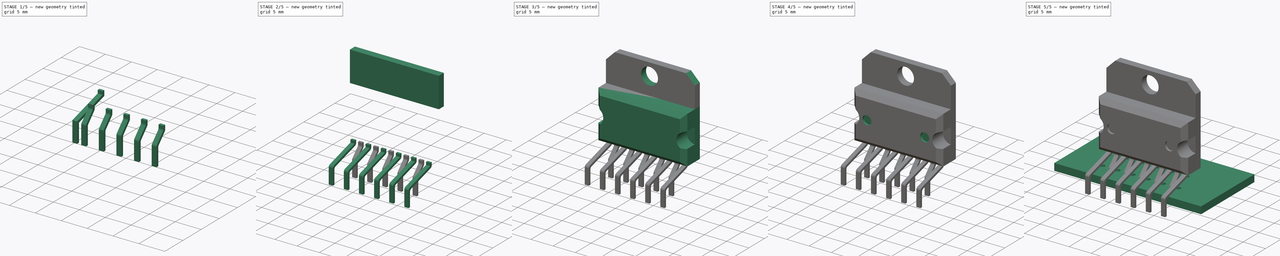
[diagram: build sequence overview — one tinted view per stage of 5, left to right]
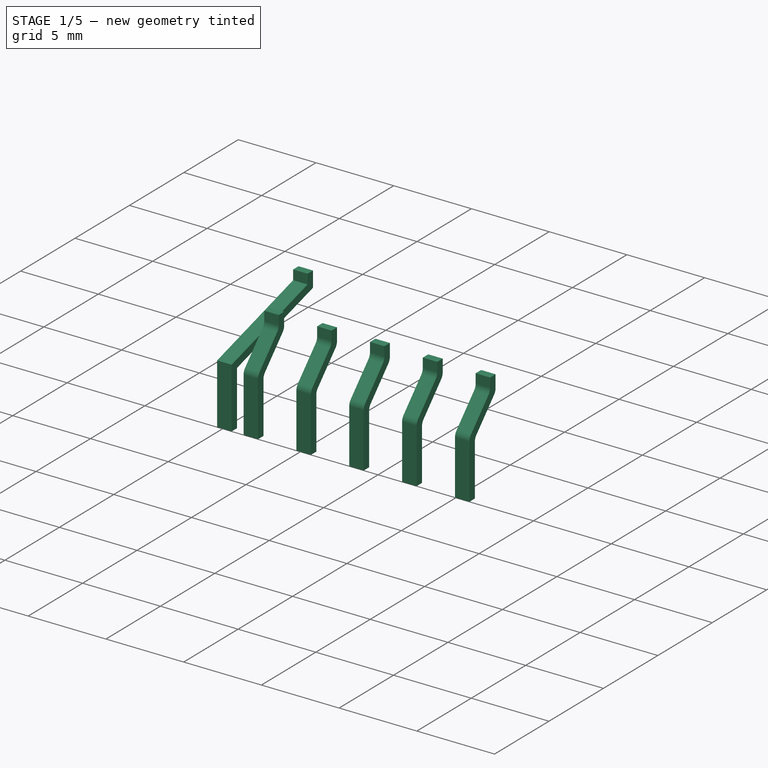
[diagram: stage 1 of 5 — iso view after this stage's code; geometry added in this stage tinted green]
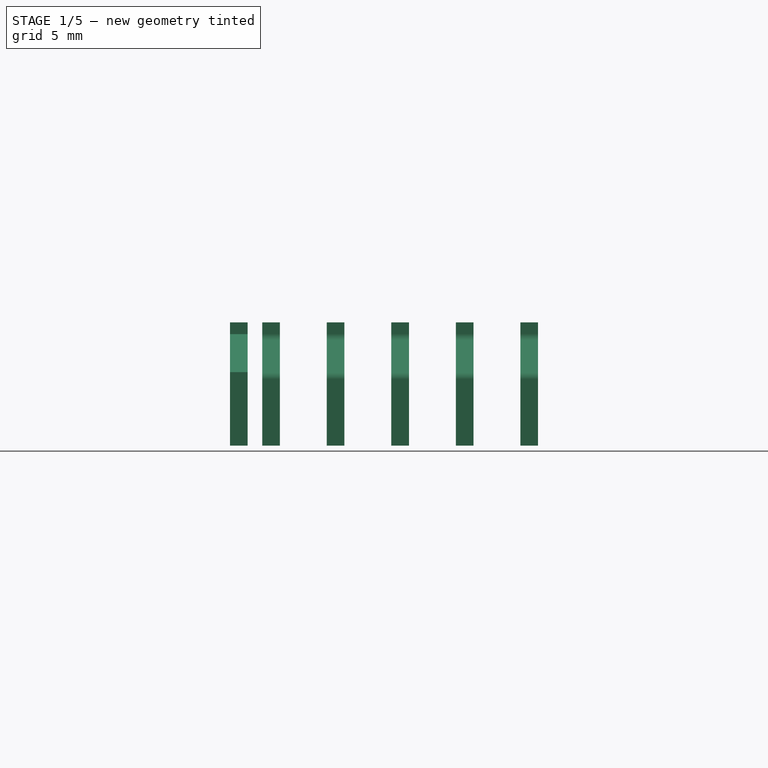
[diagram: stage 1 of 5 — front view after this stage's code; geometry added in this stage tinted green]
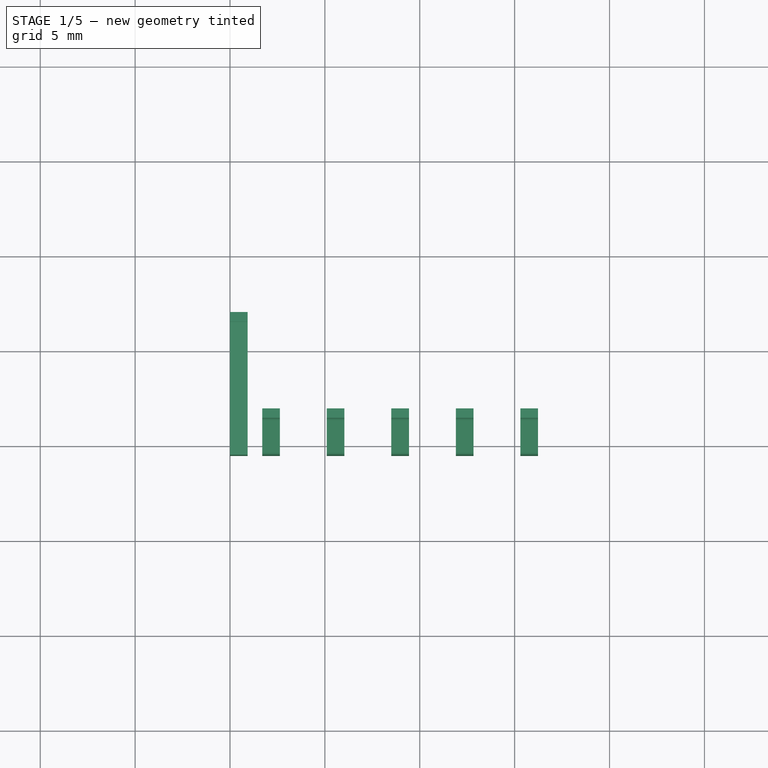
[diagram: stage 1 of 5 — top view after this stage's code; geometry added in this stage tinted green]
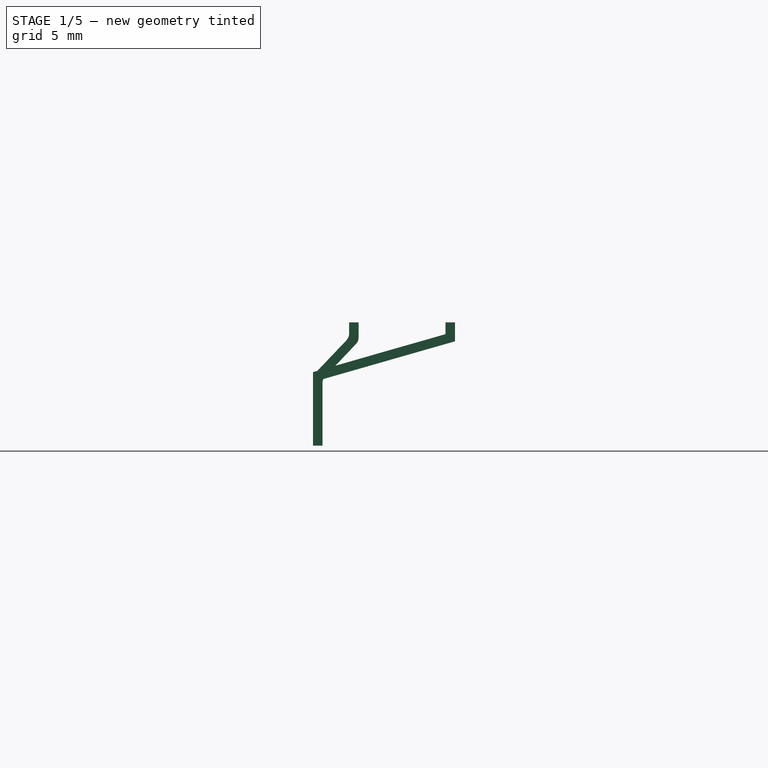
[diagram: stage 1 of 5 — right view after this stage's code; geometry added in this stage tinted green]
FCSTD DOCUMENT  (FreeCAD 0.17R10973 (Git))
Label: Multiwatt-11_Vertical_StaggeredType1
License: CreativeCommons Attribution-ShareAlike
LicenseURL: http://creativecommons.org/licenses/by-sa/4.0/
objects: Sketcher::SketchObject×7, Part::FeaturePython×7, PartDesign::Pad×4, PartDesign::Pocket×3, Part::Fillet×2, Part::MultiFuse×2, PartDesign::Chamfer×1, App::DocumentObjectGroup×1, Part::Feature×1
note: 34 computed .brp shape members not serialized (recipe doc carries the construction recipe); baked Part::Feature solids carry a one-line shape summary decoded from their .brp

FEATURE [Sketcher::SketchObject] Sketch  label="longpin"
  MapMode = 5
  Placement = pos=(0,0,0) rot=(0.57735,0.57735,0.57735;2.0944rad)
  sketch-geometry (9):
    g0: LineSegment StartX=0 StartY=-3.5 StartZ=0 EndX=0 EndY=0 EndZ=0
    g1: LineSegment StartX=0 StartY=0 StartZ=0 EndX=6.98 EndY=2 EndZ=0
    g2: LineSegment StartX=6.98 StartY=2 StartZ=0 EndX=6.98 EndY=3 EndZ=0
    g3: LineSegment StartX=6.98 StartY=3 StartZ=0 EndX=6.48 EndY=3 EndZ=0
    g4: LineSegment StartX=6.48 StartY=3 StartZ=0 EndX=6.48 EndY=2.37685 EndZ=0
    g5: LineSegment StartX=6.48 StartY=2.37685 StartZ=0 EndX=-0.5 EndY=0.376854 EndZ=0
    g6: LineSegment StartX=-0.5 StartY=0.376854 StartZ=0 EndX=-0.5 EndY=-3.5 EndZ=0
    g7: LineSegment StartX=-0.5 StartY=-3.5 StartZ=0 EndX=0 EndY=-3.5 EndZ=0
    g8: LineSegment StartX=1.75346 StartY=1.02255 StartZ=0 EndX=1.89119 EndY=0.541887 EndZ=0
  constraints (26):
    c: Vertical(g0)
    c: Coincident(g0,g1)
    c: Coincident(g1,g2)
    c: Vertical(g2)
    c: Coincident(g2,g3)
    c: Horizontal(g3)
    c: Coincident(g3,g4)
    c: Vertical(g4)
    c: Coincident(g4,g5)
    c: Coincident(g5,g6)
    c: Vertical(g6)
    c: Coincident(g6,g7)
    c: Coincident(g7,g0)
    c: Horizontal(g7)
    c: PointOnObject(g0,g-1)
    c: PointOnObject(g0,g-2)
    c: PointOnObject(g8,g5)
    c: PointOnObject(g8,g1)
    c: Perpendicular(g8,g5)
    c: Distance(g8) = 0.5
    c: Distance(g3) = 0.5
    c: DistanceY(g1,g1) = 2
    c: Parallel(g1,g5)
    c: DistanceX(g5,g5) = 6.98
    c: DistanceX(g7,g7) = 0.5
    c: DistanceY(g2,g2) = 1
FEATURE [Sketcher::SketchObject] Sketch001  label="shortpin"
  MapMode = 5
  Placement = pos=(0,0,0) rot=(0.57735,0.57735,0.57735;2.0944rad)
  sketch-geometry (9):
    g0: LineSegment StartX=0 StartY=-3.5 StartZ=0 EndX=0 EndY=0 EndZ=0
    g1: LineSegment StartX=0 StartY=0 StartZ=0 EndX=1.9 EndY=2 EndZ=0
    g2: LineSegment StartX=1.9 StartY=2 StartZ=0 EndX=1.9 EndY=3 EndZ=0
    g3: LineSegment StartX=1.9 StartY=3 StartZ=0 EndX=1.4 EndY=3 EndZ=0
    g4: LineSegment StartX=1.4 StartY=3 StartZ=0 EndX=1.4 EndY=2.19964 EndZ=0
    g5: LineSegment StartX=1.4 StartY=2.19964 StartZ=0 EndX=-0.5 EndY=0.199638 EndZ=0
    g6: LineSegment StartX=-0.5 StartY=0.199638 StartZ=0 EndX=-0.5 EndY=-3.5 EndZ=0
    g7: LineSegment StartX=-0.5 StartY=-3.5 StartZ=0 EndX=0 EndY=-3.5 EndZ=0
    g8: LineSegment StartX=0.841182 StartY=1.61141 StartZ=0 EndX=1.20368 EndY=1.26703 EndZ=0
  constraints (26):
    c: Vertical(g0)
    c: Coincident(g0,g1)
    c: Coincident(g1,g2)
    c: Vertical(g2)
    c: Coincident(g2,g3)
    c: Horizontal(g3)
    c: Coincident(g3,g4)
    c: Vertical(g4)
    c: Coincident(g4,g5)
    c: Coincident(g5,g6)
    c: Vertical(g6)
    c: Coincident(g6,g7)
    c: Coincident(g7,g0)
    c: Horizontal(g7)
    c: PointOnObject(g0,g-1)
    c: PointOnObject(g0,g-2)
    c: PointOnObject(g8,g5)
    c: PointOnObject(g8,g1)
    c: Perpendicular(g8,g5)
    c: Distance(g8) = 0.5
    c: Distance(g3) = 0.5
    c: DistanceY(g1,g1) = 2
    c: Parallel(g1,g5)
    c: DistanceX(g5,g5) = 1.9
    c: DistanceX(g7,g7) = 0.5
    c: DistanceY(g2,g2) = 1
FEATURE [PartDesign::Pad] Pad  label="shortpin_pad"
  Length = 0.93
  Length2 = 100
  Placement = pos=(0,0,0) rot=(0.57735,0.57735,0.57735;2.0944rad)
  Profile = -> Sketch001
  Type = 0
FEATURE [PartDesign::Pad] Pad001  label="longpin_pad"
  Length = 0.93
  Length2 = 100
  Placement = pos=(0,0,0) rot=(0.57735,0.57735,0.57735;2.0944rad)
  Profile = -> Sketch
  Type = 0
FEATURE [Part::FeaturePython] Array  # Draft array (typed FeaturePython)
  Angle = 360
  ArrayType = 0
  Axis = (0,0,1)
  Base = -> Pad
  Center = (0,0,0)
  Fuse = false
  IntervalAxis = (0,0,0)
  IntervalX = (3.4,0,0)
  IntervalY = (0,1,0)
  IntervalZ = (0,0,0)
  NumberPolar = 1
  NumberX = 5
  NumberY = 1
  NumberZ = 1
  Placement = pos=(1.7,0,0) rot=(0,0,1;0rad)
FEATURE [Part::Fillet] Fillet001
  Base = -> Array
  Edges = 20 edges r=0.5: [Edge2,Edge5,Edge14,Edge17,Edge26,Edge29,Edge38,Edge41,Edge50,Edge53,Edge62,Edge65,Edge74,Edge77,Edge86,Edge89,Edge98,Edge101,Edge110,Edge113]
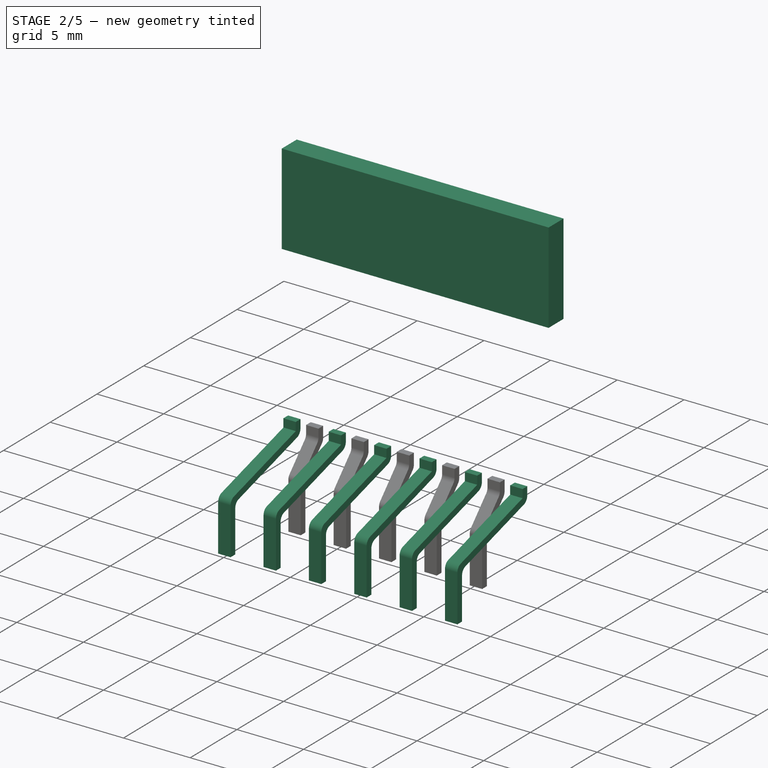
[diagram: stage 2 of 5 — iso view after this stage's code; geometry added in this stage tinted green]
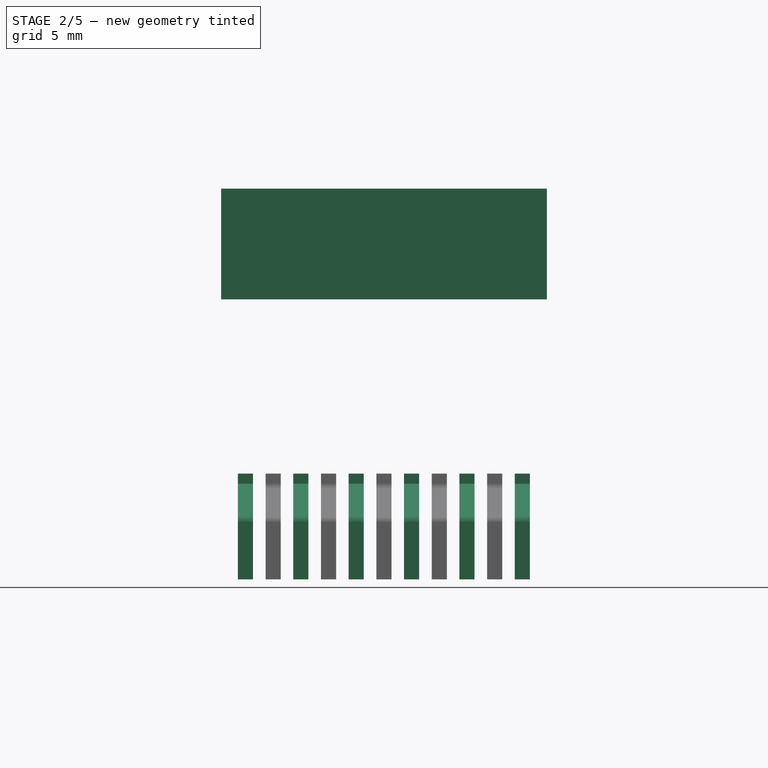
[diagram: stage 2 of 5 — front view after this stage's code; geometry added in this stage tinted green]
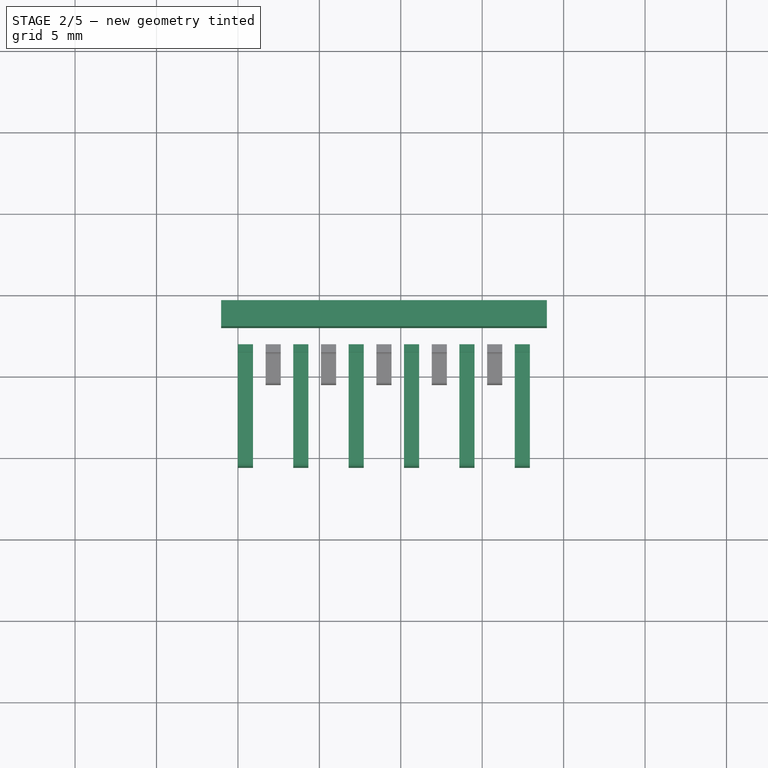
[diagram: stage 2 of 5 — top view after this stage's code; geometry added in this stage tinted green]
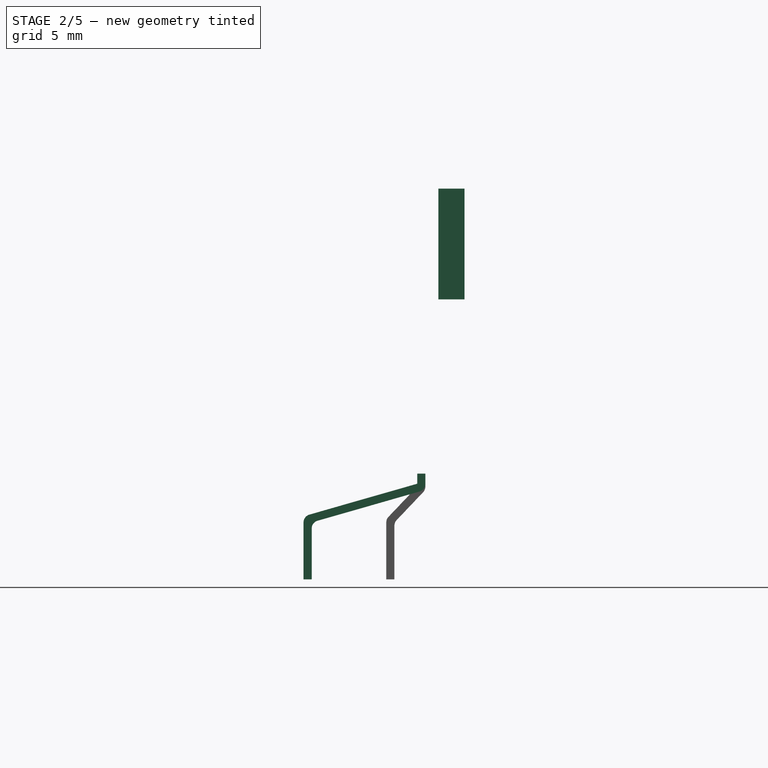
[diagram: stage 2 of 5 — right view after this stage's code; geometry added in this stage tinted green]
FEATURE [Part::FeaturePython] Array001  # Draft array (typed FeaturePython)
  Angle = 360
  ArrayType = 0
  Axis = (0,0,1)
  Base = -> Pad001
  Center = (0,0,0)
  Fuse = false
  IntervalAxis = (0,0,0)
  IntervalX = (3.4,0,0)
  IntervalY = (0,1,0)
  IntervalZ = (0,0,0)
  NumberPolar = 1
  NumberX = 6
  NumberY = 1
  NumberZ = 1
  Placement = pos=(0,-5.08,0) rot=(0,0,1;0rad)
FEATURE [Sketcher::SketchObject] Sketch005
  MapMode = 5
  Placement = pos=(0,0,13.7) rot=(0,0,1;0rad)
  sketch-geometry (4):
    g0: LineSegment StartX=-1.03 StartY=4.3 StartZ=0 EndX=18.97 EndY=4.3 EndZ=0
    g1: LineSegment StartX=18.97 StartY=4.3 StartZ=0 EndX=18.97 EndY=2.7 EndZ=0
    g2: LineSegment StartX=18.97 StartY=2.7 StartZ=0 EndX=-1.03 EndY=2.7 EndZ=0
    g3: LineSegment StartX=-1.03 StartY=2.7 StartZ=0 EndX=-1.03 EndY=4.3 EndZ=0
  constraints (9):
    c: Coincident(g0,g1)
    c: Coincident(g1,g2)
    c: Coincident(g2,g3)
    c: Coincident(g3,g0)
    c: Horizontal(g0)
    c: Horizontal(g2)
    c: Vertical(g1)
    c: Vertical(g3)
    c: DistanceY(g1,g1) = 1.6
FEATURE [PartDesign::Pad] Pad003
  Length = 6.8
  Length2 = 100
  Placement = pos=(0,0,13.7) rot=(0,0,1;0rad)
  Profile = -> Sketch005
  Type = 0
FEATURE [Part::Fillet] Fillet
  Base = -> Array001
  Edges = 18 edges r=0.5: [Edge2,Edge5,Edge17,Edge26,Edge29,Edge41,Edge50,Edge53,Edge65,Edge74,Edge77,Edge89,Edge98,Edge101,Edge113,Edge122,Edge125,Edge137]
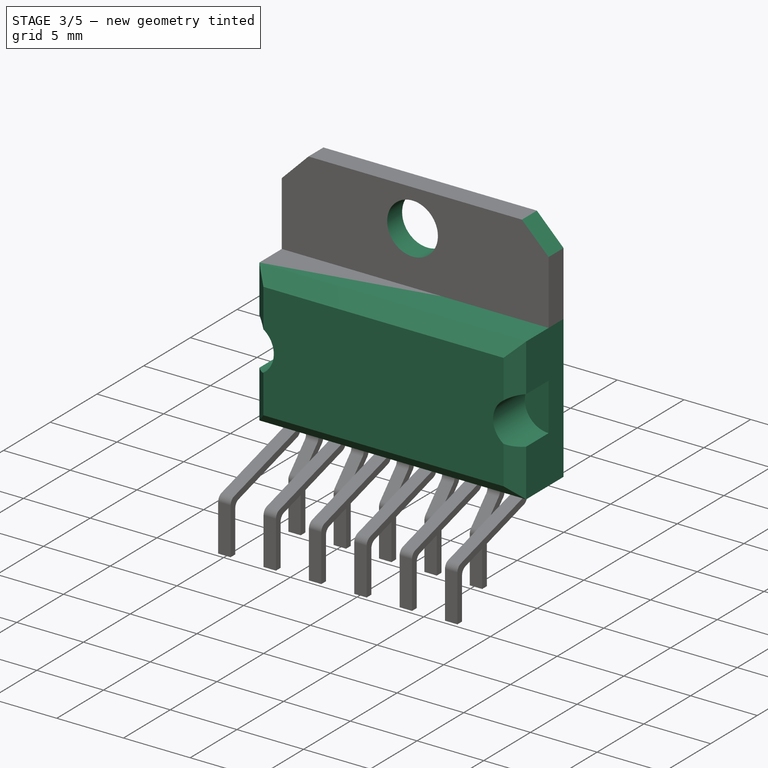
[diagram: stage 3 of 5 — iso view after this stage's code; geometry added in this stage tinted green]
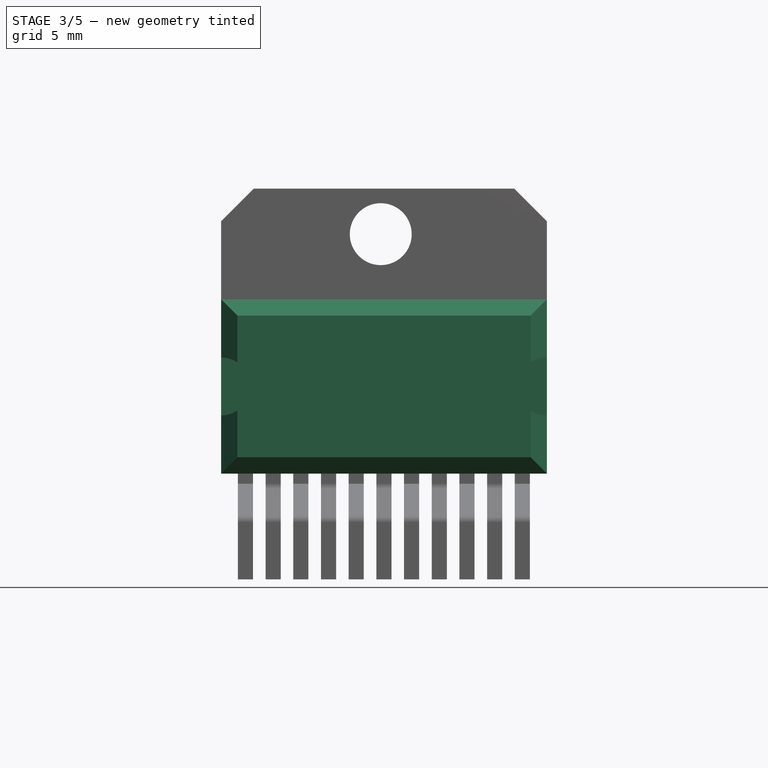
[diagram: stage 3 of 5 — front view after this stage's code; geometry added in this stage tinted green]
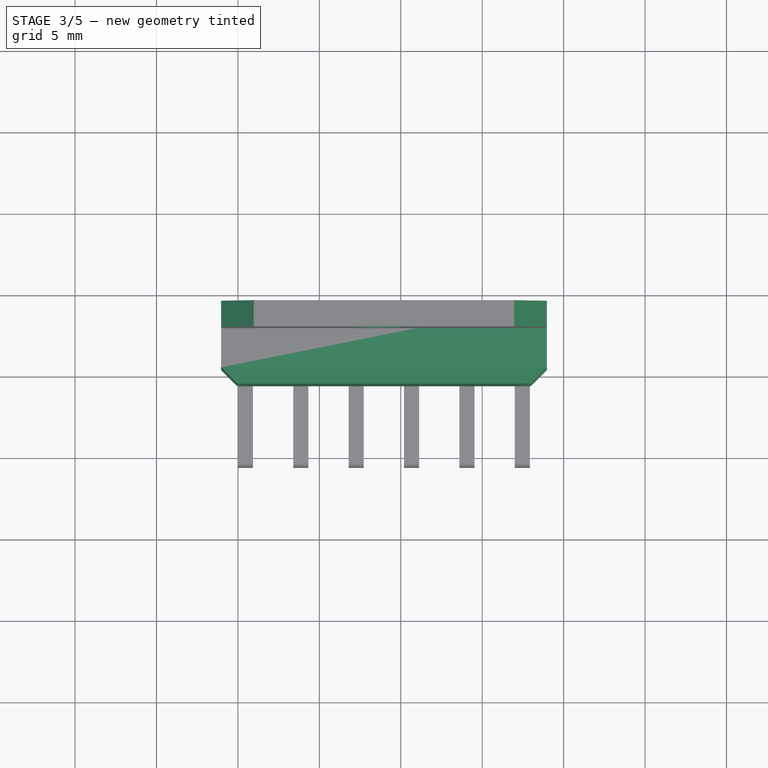
[diagram: stage 3 of 5 — top view after this stage's code; geometry added in this stage tinted green]
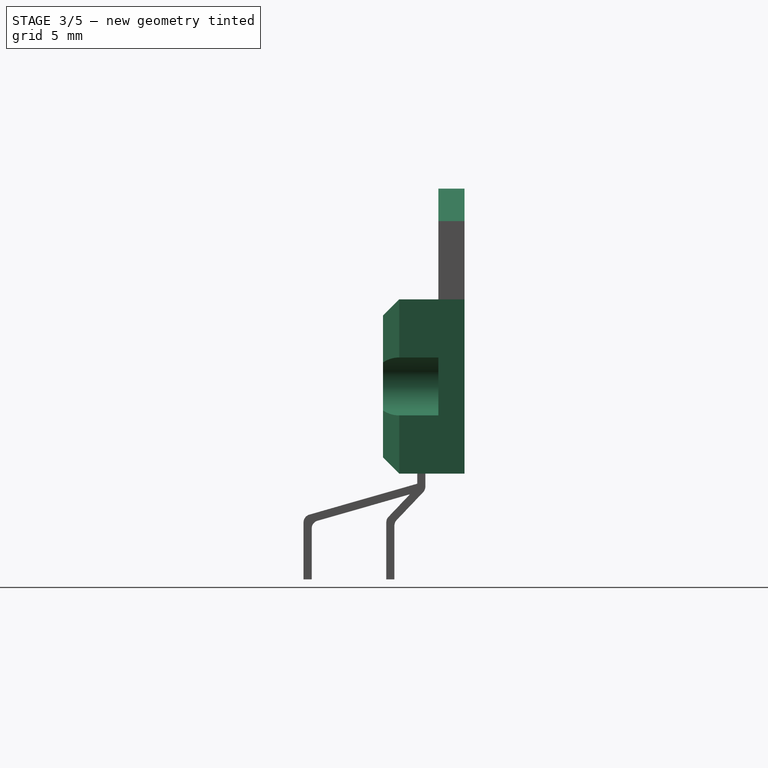
[diagram: stage 3 of 5 — right view after this stage's code; geometry added in this stage tinted green]
FEATURE [Sketcher::SketchObject] Sketch002
  MapMode = 5
  Placement = pos=(0,0,3) rot=(0,0,1;0rad)
  sketch-geometry (4):
    g0: LineSegment StartX=-1.03 StartY=4.3 StartZ=0 EndX=18.97 EndY=4.3 EndZ=0
    g1: LineSegment StartX=18.97 StartY=4.3 StartZ=0 EndX=18.97 EndY=-0.7 EndZ=0
    g2: LineSegment StartX=18.97 StartY=-0.7 StartZ=0 EndX=-1.03 EndY=-0.7 EndZ=0
    g3: LineSegment StartX=-1.03 StartY=-0.7 StartZ=0 EndX=-1.03 EndY=4.3 EndZ=0
  constraints (12):
    c: Coincident(g0,g1)
    c: Coincident(g1,g2)
    c: Coincident(g2,g3)
    c: Coincident(g3,g0)
    c: Horizontal(g0)
    c: Horizontal(g2)
    c: Vertical(g1)
    c: Vertical(g3)
    c: DistanceX(g0,g0) = 20
    c: DistanceX(g-1,g2) = -1.03
    c: DistanceY(g-1,g0) = 4.3
    c: DistanceY(g1,g1) = 5
FEATURE [PartDesign::Pad] Pad002
  Length = 10.7
  Length2 = 100
  Placement = pos=(0,0,3) rot=(0,0,1;0rad)
  Profile = -> Sketch002
  Type = 0
FEATURE [PartDesign::Chamfer] Chamfer
  Base = -> Pad002 [Edge5,Edge8,Edge9,Edge10]
  Placement = pos=(0,0,3) rot=(0,0,1;0rad)
  Size = 1
FEATURE [Sketcher::SketchObject] Sketch003
  ExternalGeometry = -> [Chamfer]
  MapMode = 5
  Placement = pos=(0,-0.7,3) rot=(1,0,0;1.5708rad)
  Support = -> [Chamfer]
  sketch-geometry (2):
    g0: Circle CenterX=-1.03 CenterY=5.35 CenterZ=0 NormalX=0 NormalY=0 NormalZ=1 Radius=1.78
    g1: Circle CenterX=18.97 CenterY=5.35 CenterZ=0 NormalX=0 NormalY=0 NormalZ=1 Radius=1.78
  constraints (4):
    c: Symmetric(g-4,g-4,g0)
    c: Symmetric(g-3,g-3,g1)
    c: Radius(g0) = 1.78
    c: Radius(g1) = 1.78
FEATURE [PartDesign::Pocket] Pocket
  Length = 3.4
  Placement = pos=(0,0,3) rot=(0,0,1;0rad)
  Profile = -> Sketch003
  Type = 0
FEATURE [Sketcher::SketchObject] Sketch006
  MapMode = 5
  Placement = pos=(0,2.7,3) rot=(1,0,0;1.5708rad)
  Support = -> [Pad003]
  sketch-geometry (7):
    g0: LineSegment StartX=-1.03 StartY=17.5 StartZ=0 EndX=-1.03 EndY=15.5 EndZ=0
    g1: LineSegment StartX=-1.03 StartY=15.5 StartZ=0 EndX=0.97 EndY=17.5 EndZ=0
    g2: LineSegment StartX=0.97 StartY=17.5 StartZ=0 EndX=-1.03 EndY=17.5 EndZ=0
    g3: LineSegment StartX=18.97 StartY=17.5 StartZ=0 EndX=18.97 EndY=15.5 EndZ=0
    g4: LineSegment StartX=18.97 StartY=15.5 StartZ=0 EndX=16.97 EndY=17.5 EndZ=0
    g5: LineSegment StartX=16.97 StartY=17.5 StartZ=0 EndX=18.97 EndY=17.5 EndZ=0
    g6: Circle CenterX=8.77 CenterY=14.7 CenterZ=0 NormalX=0 NormalY=0 NormalZ=1 Radius=1.9
FEATURE [PartDesign::Pocket] Pocket002
  Length = 5
  Placement = pos=(0,0,13.7) rot=(0,0,1;0rad)
  Profile = -> Sketch006
  Type = 0
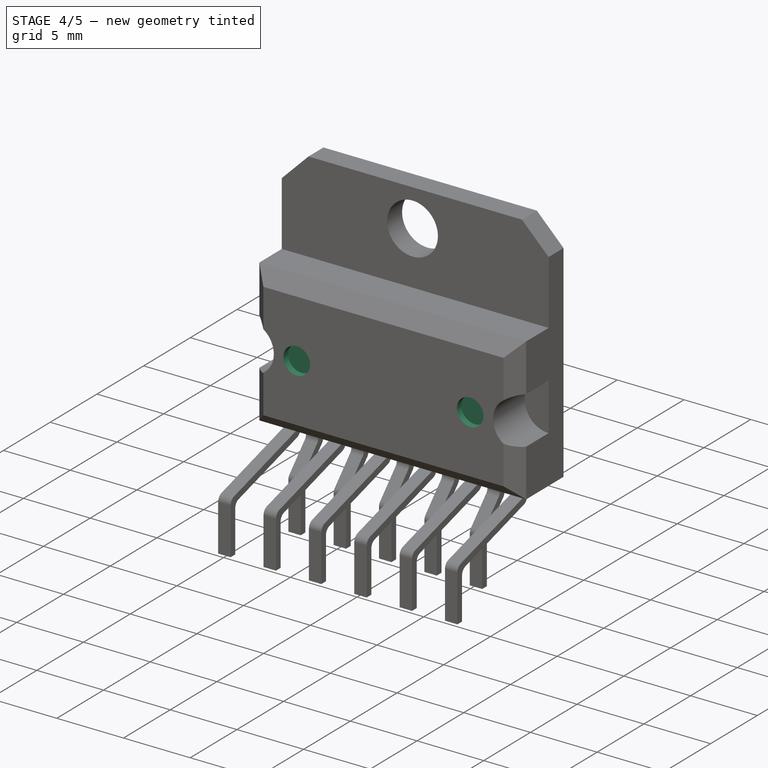
[diagram: stage 4 of 5 — iso view after this stage's code; geometry added in this stage tinted green]
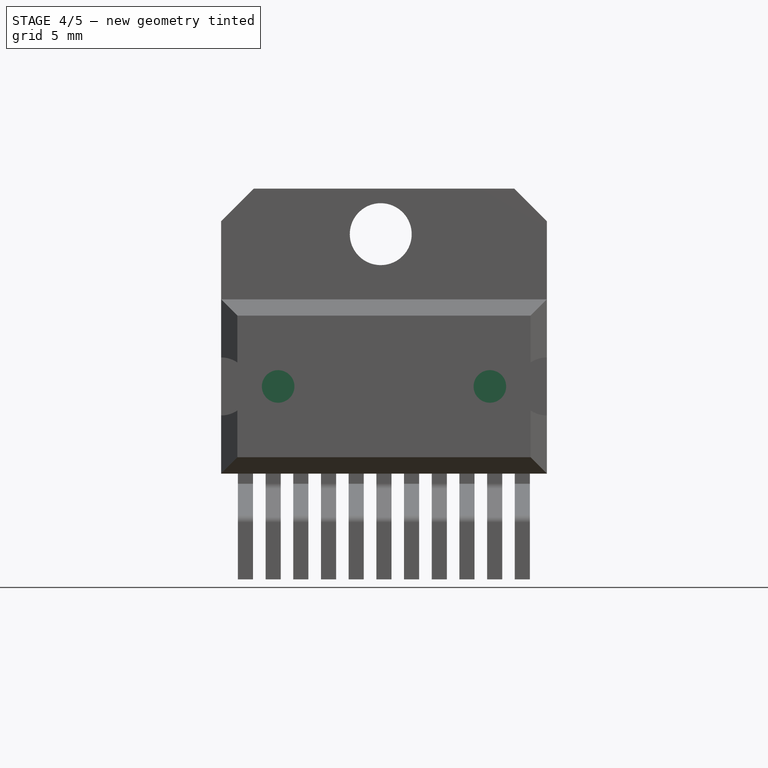
[diagram: stage 4 of 5 — front view after this stage's code; geometry added in this stage tinted green]
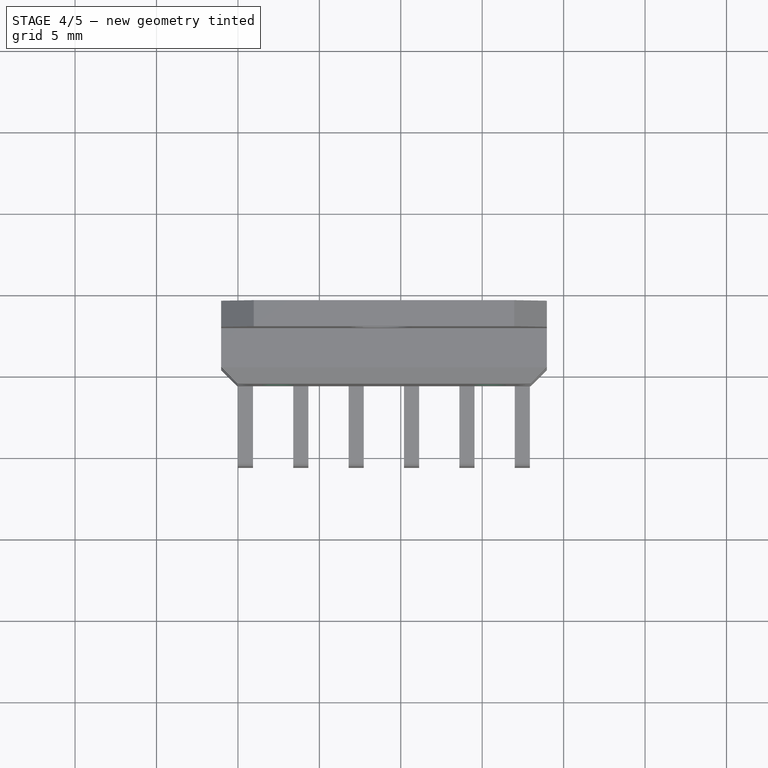
[diagram: stage 4 of 5 — top view after this stage's code; geometry added in this stage tinted green]
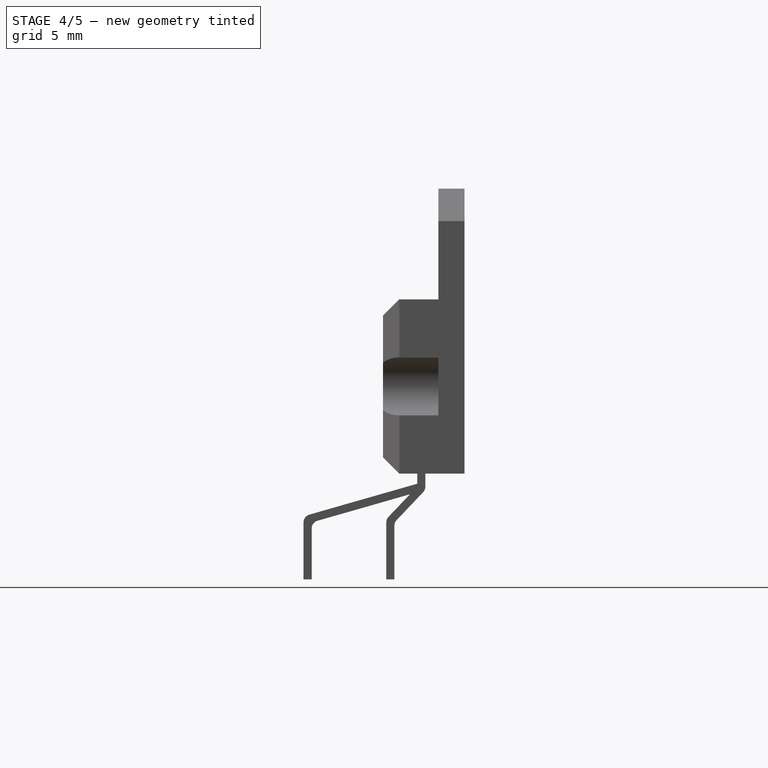
[diagram: stage 4 of 5 — right view after this stage's code; geometry added in this stage tinted green]
FEATURE [Sketcher::SketchObject] Sketch004
  ExternalGeometry = -> [Pocket]
  MapMode = 5
  Placement = pos=(0,-0.7,3) rot=(1,0,0;1.5708rad)
  Support = -> [Pocket]
  sketch-geometry (2):
    g0: Circle CenterX=2.47 CenterY=5.35 CenterZ=0 NormalX=0 NormalY=0 NormalZ=1 Radius=1
    g1: Circle CenterX=15.47 CenterY=5.35 CenterZ=0 NormalX=0 NormalY=0 NormalZ=1 Radius=1
  constraints (6):
    c: Radius(g0) = 1
    c: Radius(g1) = 1
    c: DistanceX(g-7,g0) = 3.5
    c: DistanceY(g-10,g0) = 5.35
    c: DistanceX(g1,g-9) = 3.5
    c: DistanceY(g-10,g1) = 5.35
FEATURE [PartDesign::Pocket] Pocket001
  Length = 0.5
  Placement = pos=(0,0,3) rot=(0,0,1;0rad)
  Profile = -> Sketch004
  Type = 0
FEATURE [Part::MultiFuse] Fillet001_mp_cp  label="Fillet001_fd"
  Shapes = -> [Fillet,Pocket002,Pocket001]
FEATURE [App::DocumentObjectGroup] Multiwatt_11_Vertical_StaggeredType1_fp
  Group = -> [Filk_lines,TopPads,BotPads,THPs,newPCB]
FEATURE [Part::MultiFuse] Fillet001_mp_cp001  label="Fillet001_fd001"
  Shapes = -> [Fillet001,Fillet001_mp_cp]
FEATURE [Part::Feature] Shape001  label="Multiwatt-11_Vertical_StaggeredType1"
  shape: bbox 20 x 9.88 x 24 mm, 166 faces (baked)
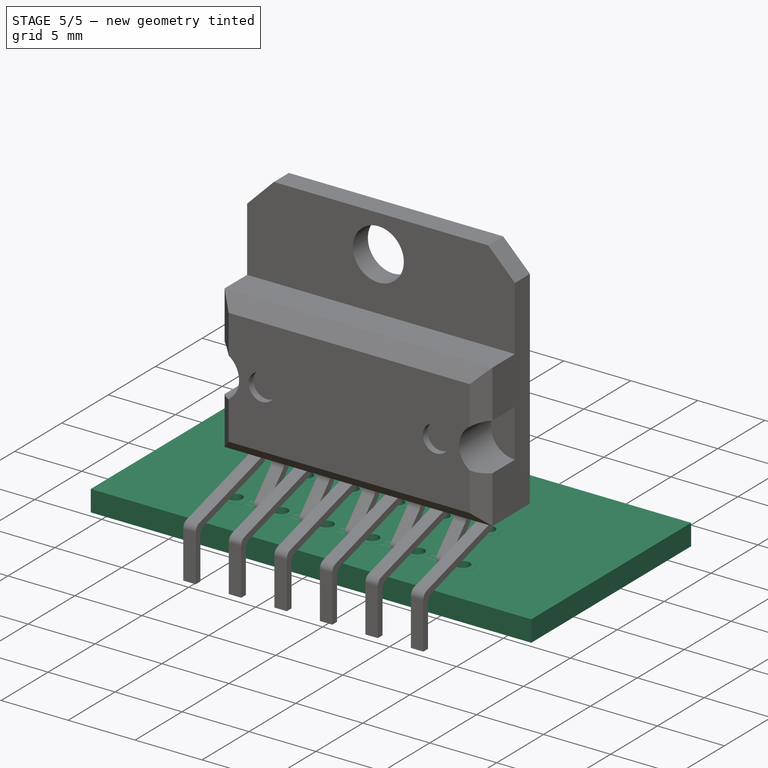
[diagram: stage 5 of 5 — iso view after this stage's code; geometry added in this stage tinted green]
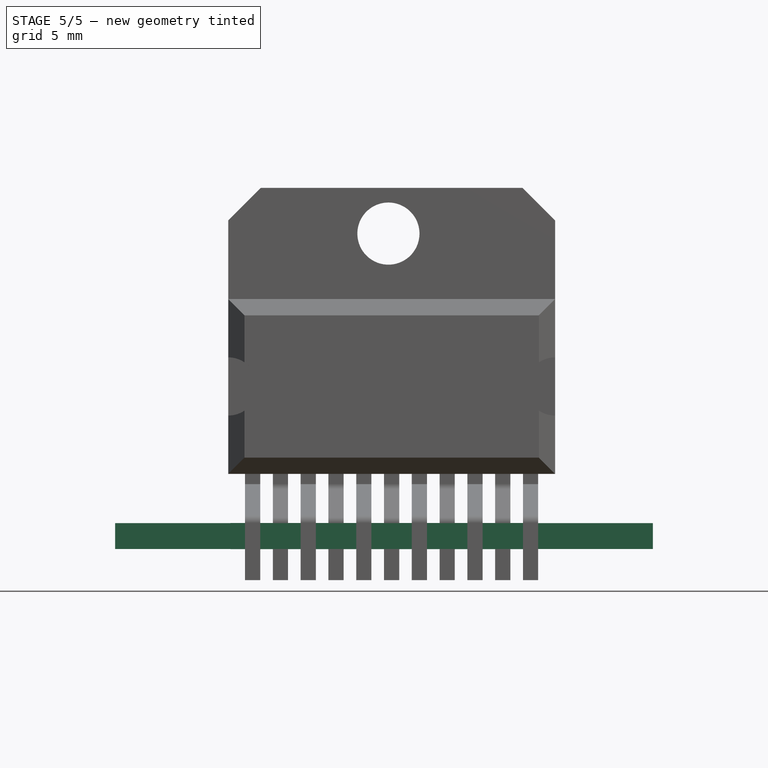
[diagram: stage 5 of 5 — front view after this stage's code; geometry added in this stage tinted green]
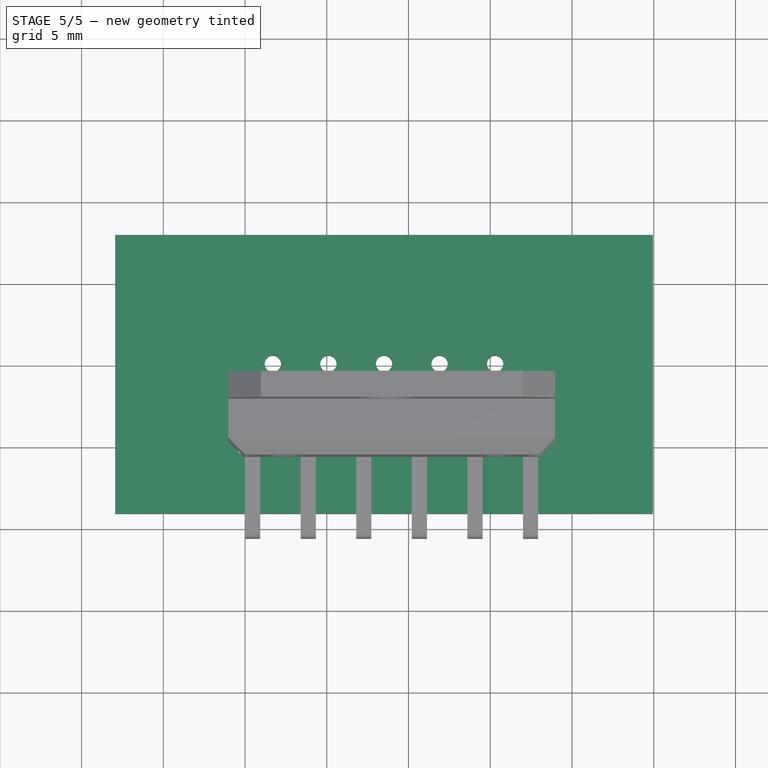
[diagram: stage 5 of 5 — top view after this stage's code; geometry added in this stage tinted green]
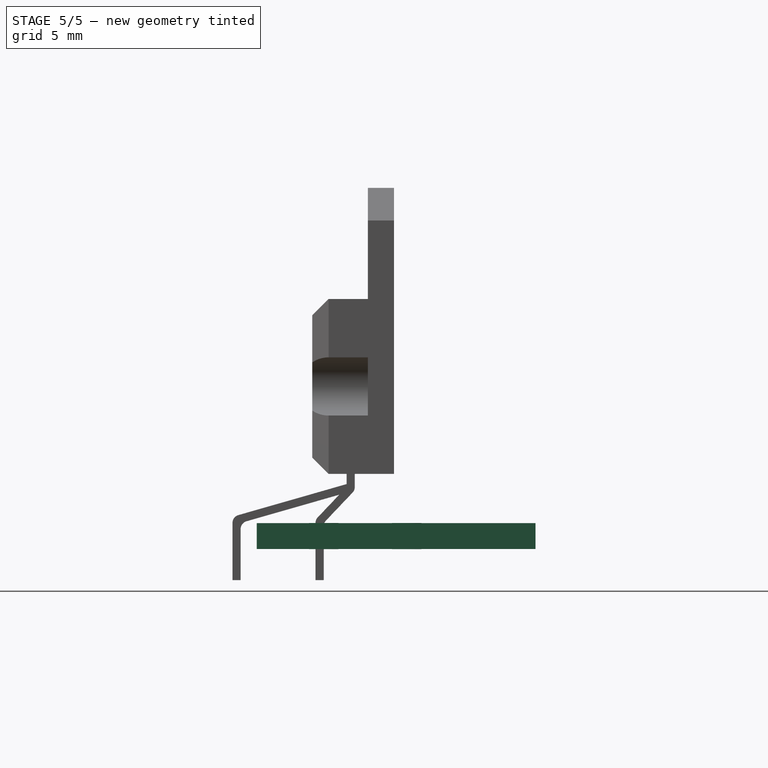
[diagram: stage 5 of 5 — right view after this stage's code; geometry added in this stage tinted green]
FEATURE [Part::FeaturePython] Filk_lines  label="FrontSilk"  # a2plus imported part (geometry in sourceFile) (typed FeaturePython)
  fixedPosition = true
FEATURE [Part::FeaturePython] TopPads  # a2plus imported part (geometry in sourceFile) (typed FeaturePython)
  fixedPosition = true
FEATURE [Part::FeaturePython] BotPads  # a2plus imported part (geometry in sourceFile) (typed FeaturePython)
  fixedPosition = true
FEATURE [Part::FeaturePython] THPs  label="PTHs"  # a2plus imported part (geometry in sourceFile) (typed FeaturePython)
  fixedPosition = true
FEATURE [Part::FeaturePython] newPCB  label="Pcb"  # a2plus imported part (geometry in sourceFile) (typed FeaturePython)
  fixedPosition = true
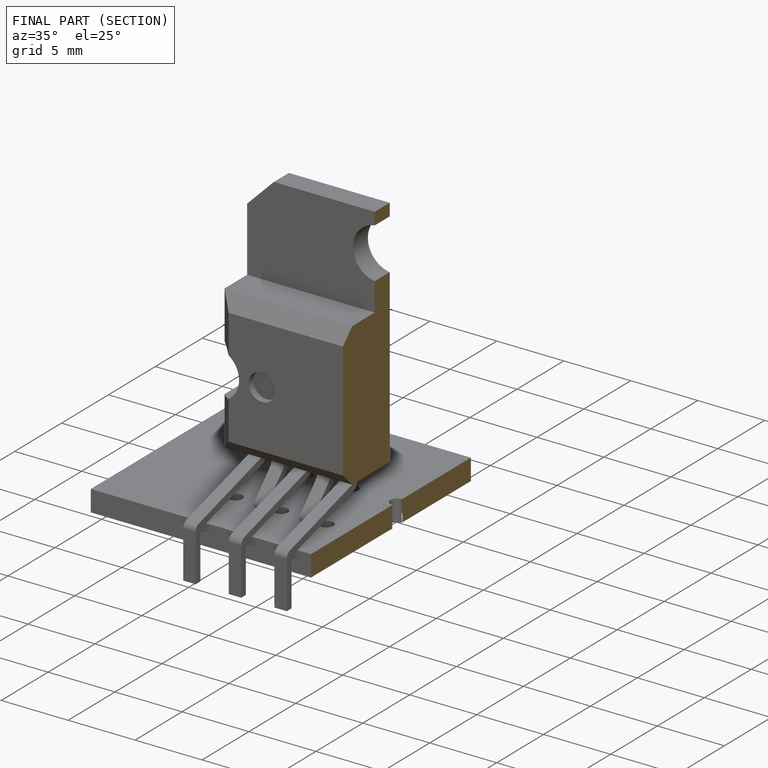
[diagram: finished part — half-section view (interior)]
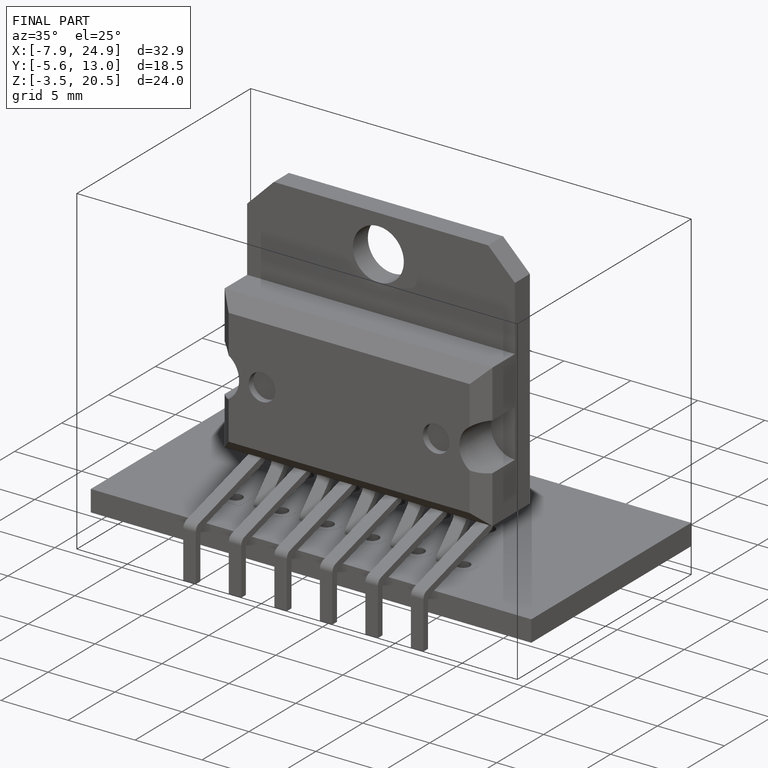
[diagram: finished part — iso view with bounding-box wireframe]
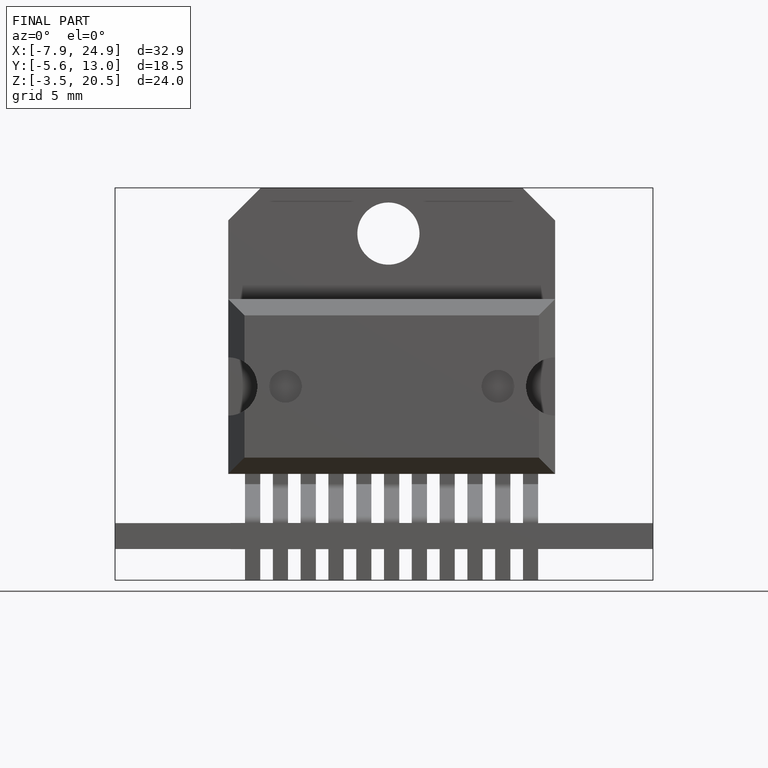
[diagram: finished part — front view with bounding-box wireframe]
